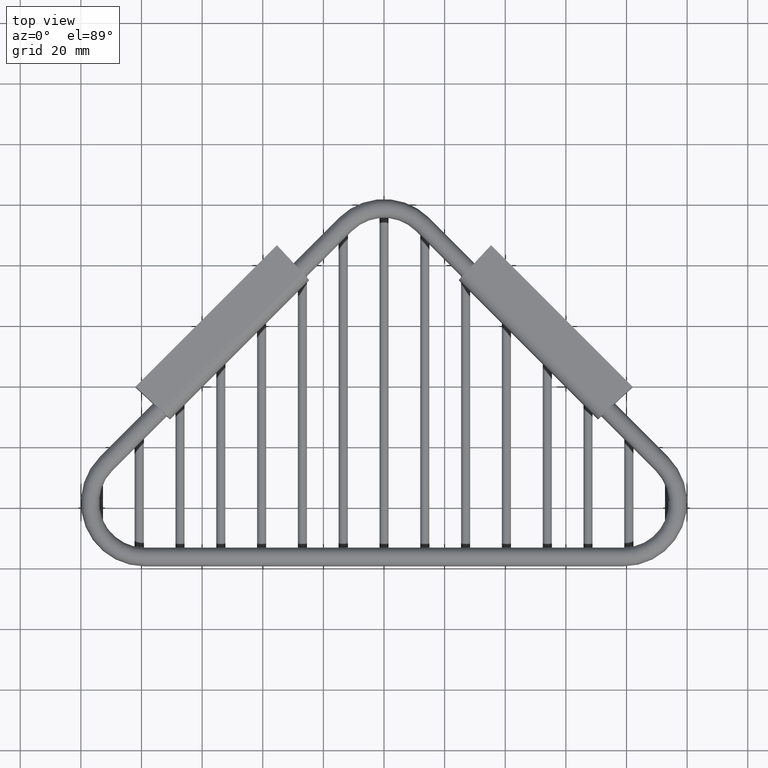
[diagram: clean part render]
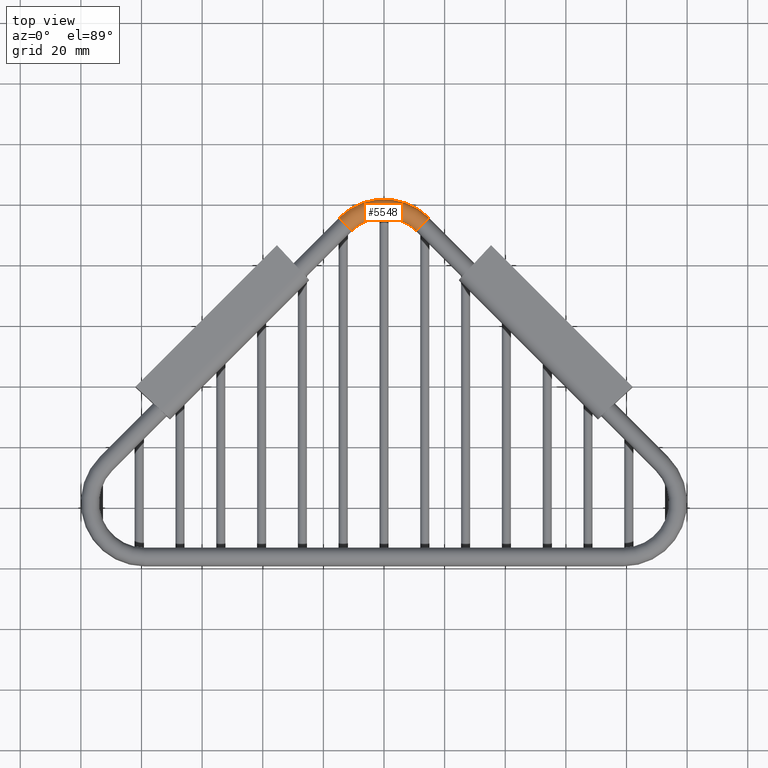
[diagram: same view with one face highlighted and labeled with its STEP entity id]
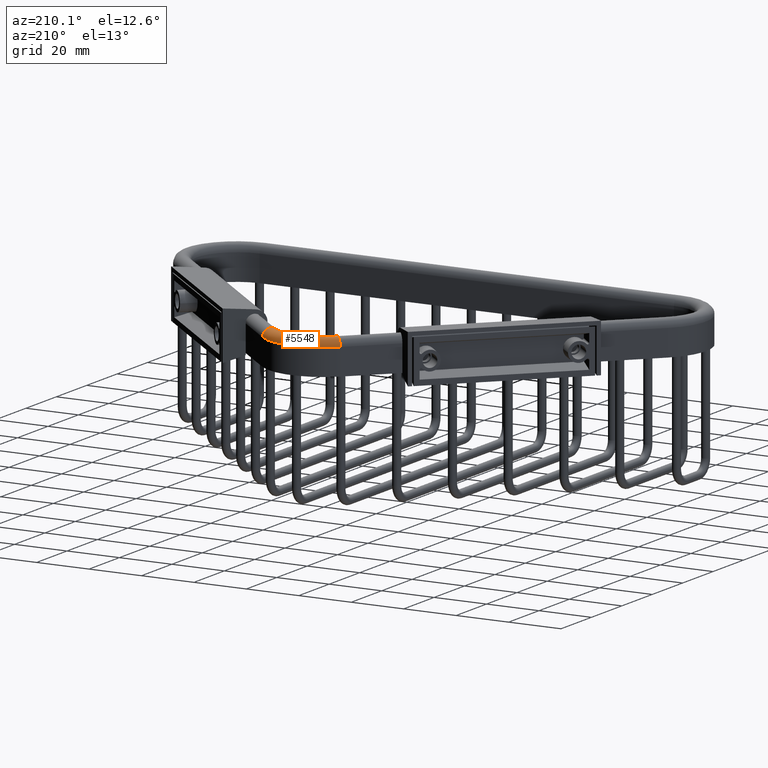
[diagram: same view with one face highlighted and labeled with its STEP entity id]
A machine part, top view. The second image highlights one B-rep face of the part: STEP entity #5548.
A second angle (auxiliary view) of the same face is appended — the face is thin or edge-on in the first view.
In plain terms, the highlighted toroidal blend (fillet) surface has major radius 18.0086 mm and minor (blend) radius 2.9972 mm.
Its self-contained STEP definition (entity closure, byte-faithful):
#1994=CARTESIAN_POINT('',(-5.013387078615E-1,4.438338707861E0,1.38E-1));
#1995=DIRECTION('',(7.071067811865E-1,7.071067811865E-1,0.E0));
#1996=DIRECTION('',(-7.071067811865E-1,7.071067811865E-1,0.E0));
#1997=AXIS2_PLACEMENT_3D('',#1994,#1995,#1996);
#2048=CARTESIAN_POINT('',(0.E0,3.937E0,1.38E-1));
#2049=DIRECTION('',(0.E0,0.E0,1.E0));
#2050=DIRECTION('',(7.071067811865E-1,7.071067811865E-1,0.E0));
#2051=AXIS2_PLACEMENT_3D('',#2048,#2049,#2050);
#2063=CARTESIAN_POINT('',(5.013386370596E-1,4.438338778776E0,1.38E-1));
#2064=DIRECTION('',(7.071068811273E-1,-7.071066812458E-1,0.E0));
#2065=DIRECTION('',(7.071066812458E-1,7.071068811273E-1,0.E0));
#2066=AXIS2_PLACEMENT_3D('',#2063,#2064,#2065);
#2252=CARTESIAN_POINT('',(0.E0,3.937E0,1.38E-1));
#2253=DIRECTION('',(0.E0,0.E0,1.E0));
#2254=DIRECTION('',(7.071067811865E-1,7.071067811865E-1,0.E0));
#2255=AXIS2_PLACEMENT_3D('',#2252,#2253,#2254);
#3553=CARTESIAN_POINT('',(5.847773080413E-1,4.521777308041E0,1.38E-1));
#3554=CARTESIAN_POINT('',(-5.847773080413E-1,4.521777308041E0,1.38E-1));
#3555=VERTEX_POINT('',#3553);
#3556=VERTEX_POINT('',#3554);
#3557=CARTESIAN_POINT('',(4.179001076813E-1,4.354900107681E0,1.38E-1));
#3558=CARTESIAN_POINT('',(-4.179001076813E-1,4.354900107681E0,1.38E-1));
#3559=VERTEX_POINT('',#3557);
#3560=VERTEX_POINT('',#3558);
#5535=CARTESIAN_POINT('',(0.E0,3.937E0,1.38E-1));
#5536=DIRECTION('',(0.E0,0.E0,1.E0));
#5537=DIRECTION('',(7.198008420403E-1,6.941806305264E-1,0.E0));
#5538=AXIS2_PLACEMENT_3D('',#5535,#5536,#5537);
#5539=TOROIDAL_SURFACE('',#5538,7.090000000796E-1,1.18E-1);
#5540=ORIENTED_EDGE('',*,*,#5527,.F.);
#5542=ORIENTED_EDGE('',*,*,#5541,.T.);
#5544=ORIENTED_EDGE('',*,*,#5543,.T.);
#5545=ORIENTED_EDGE('',*,*,#5489,.F.);
#5546=EDGE_LOOP('',(#5540,#5542,#5544,#5545));
#5547=FACE_OUTER_BOUND('',#5546,.F.);
#1998=CIRCLE('',#1997,1.18E-1);
#2052=CIRCLE('',#2051,8.27E-1);
#2067=CIRCLE('',#2066,1.18E-1);
#2256=CIRCLE('',#2255,5.91E-1);
#5489=EDGE_CURVE('',#3556,#3560,#1998,.T.);
#5527=EDGE_CURVE('',#3555,#3556,#2052,.T.);
#5541=EDGE_CURVE('',#3555,#3559,#2067,.T.);
#5543=EDGE_CURVE('',#3559,#3560,#2256,.T.);
#5548=ADVANCED_FACE('',(#5547),#5539,.T.);